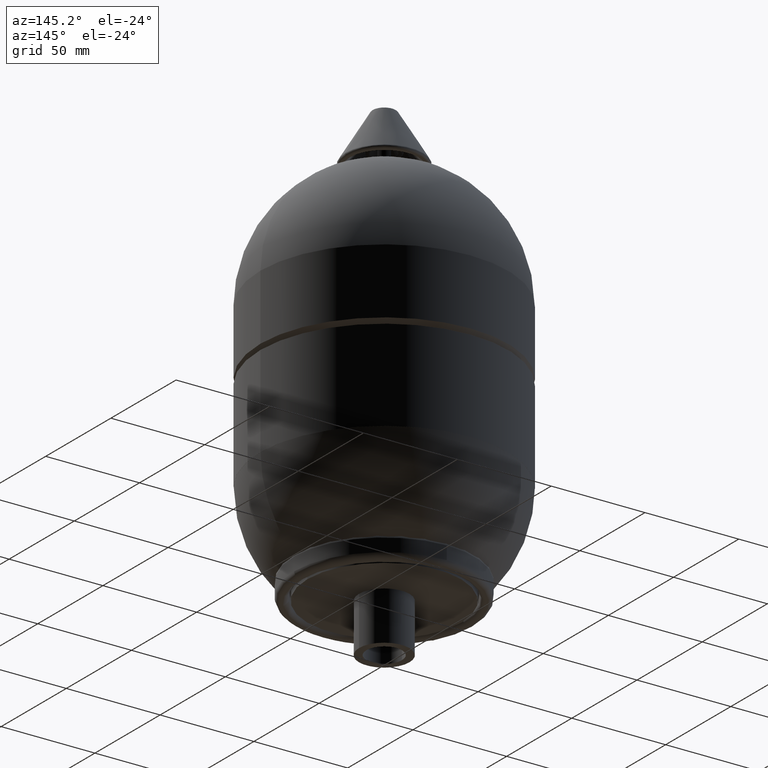
[diagram: clean part render]
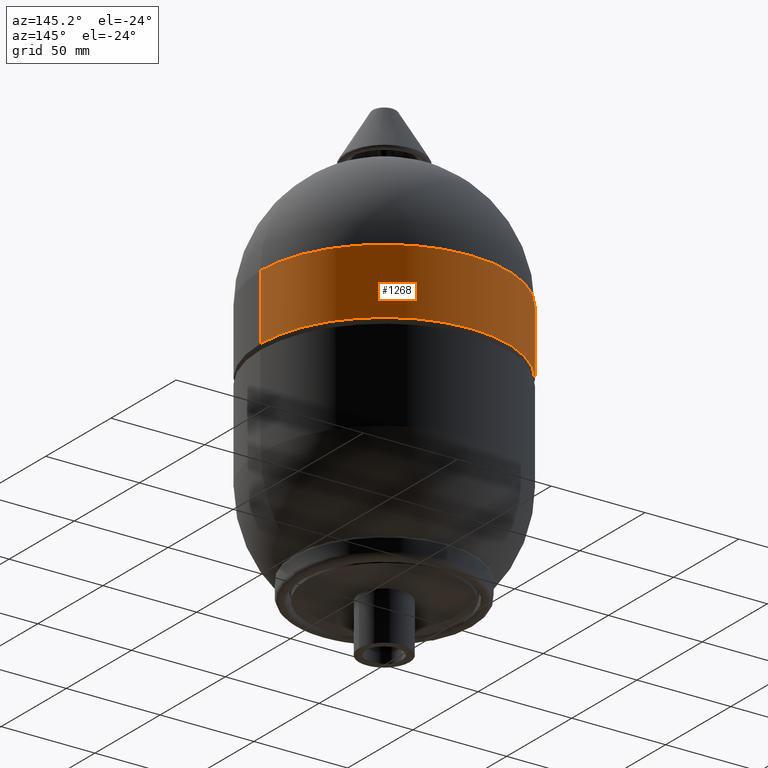
[diagram: same view with one face highlighted and labeled with its STEP entity id]
A machine part, auxiliary view. The second image highlights one B-rep face of the part: STEP entity #1268.
In plain terms, the highlighted cylindrical surface (partial cylindrical patch) has radius 66 mm, axis along (0, 0, 1).
Its self-contained STEP definition (entity closure, byte-faithful):
#1068=CARTESIAN_POINT('',(66.0,0.0,167.500000000000000));
#1069=VERTEX_POINT('',#1068);
#1070=CARTESIAN_POINT('',(65.999999999999972,0.0,132.500000000000000));
#1071=VERTEX_POINT('',#1070);
#1072=CARTESIAN_POINT('',(66.0,0.0,167.500000000000000));
#1073=DIRECTION('',(0.0,0.0,-1.0));
#1074=VECTOR('',#1073,35.0);
#1075=LINE('',#1072,#1074);
#1076=EDGE_CURVE('',#1069,#1071,#1075,.T.);
#1078=CARTESIAN_POINT('',(-65.999999999999986,-8.082402E-015,167.500000000000000));
#1079=VERTEX_POINT('',#1078);
#1087=CARTESIAN_POINT('',(-65.999999999999957,-8.082402E-015,132.500000000000000));
#1088=VERTEX_POINT('',#1087);
#1089=CARTESIAN_POINT('',(-65.999999999999986,-8.082402E-015,167.500000000000000));
#1090=DIRECTION('',(0.0,0.0,-1.0));
#1091=VECTOR('',#1090,35.0);
#1092=LINE('',#1089,#1091);
#1093=EDGE_CURVE('',#1079,#1088,#1092,.T.);
#1241=CARTESIAN_POINT('',(0.0,0.0,132.500000000000000));
#1242=DIRECTION('',(0.0,0.0,1.0));
#1243=DIRECTION('',(1.0,0.0,0.0));
#1244=AXIS2_PLACEMENT_3D('',#1241,#1242,#1243);
#1245=CIRCLE('',#1244,65.999999999999972);
#1246=EDGE_CURVE('',#1071,#1088,#1245,.T.);
#1251=CARTESIAN_POINT('',(0.0,0.0,150.0));
#1252=DIRECTION('',(0.0,0.0,1.0));
#1253=DIRECTION('',(1.0,0.0,0.0));
#1254=AXIS2_PLACEMENT_3D('',#1251,#1252,#1253);
#1255=CYLINDRICAL_SURFACE('',#1254,65.999999999999986);
#1256=ORIENTED_EDGE('',*,*,#1076,.T.);
#1257=ORIENTED_EDGE('',*,*,#1246,.T.);
#1258=ORIENTED_EDGE('',*,*,#1093,.F.);
#1259=CARTESIAN_POINT('',(0.0,0.0,167.500000000000000));
#1260=DIRECTION('',(0.0,0.0,1.0));
#1261=DIRECTION('',(1.0,0.0,0.0));
#1262=AXIS2_PLACEMENT_3D('',#1259,#1260,#1261);
#1263=CIRCLE('',#1262,66.0);
#1264=EDGE_CURVE('',#1069,#1079,#1263,.T.);
#1265=ORIENTED_EDGE('',*,*,#1264,.F.);
#1266=EDGE_LOOP('',(#1256,#1257,#1258,#1265));
#1267=FACE_OUTER_BOUND('',#1266,.T.);
#1268=ADVANCED_FACE('',(#1267),#1255,.T.);